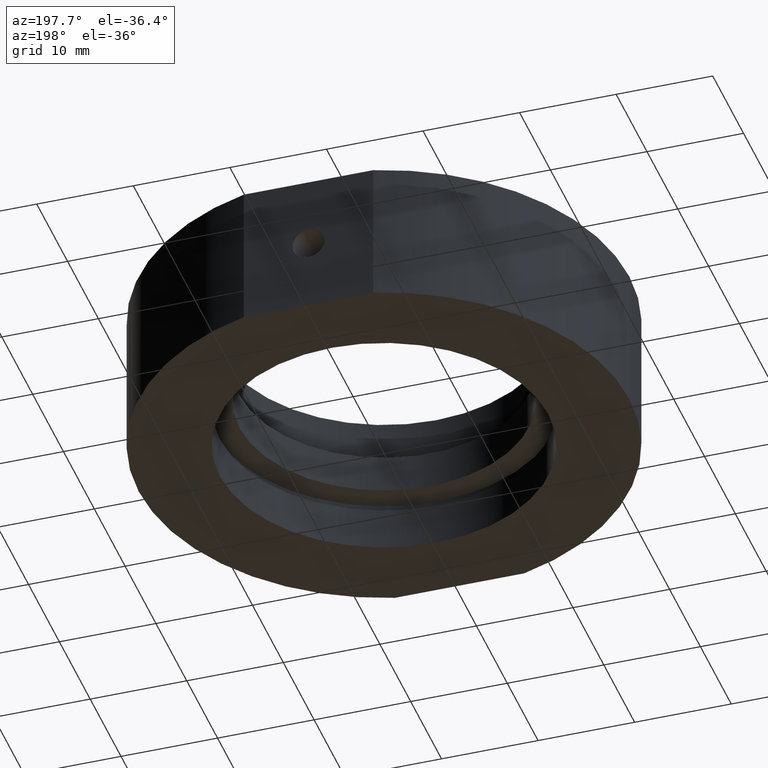
[diagram: clean part render]
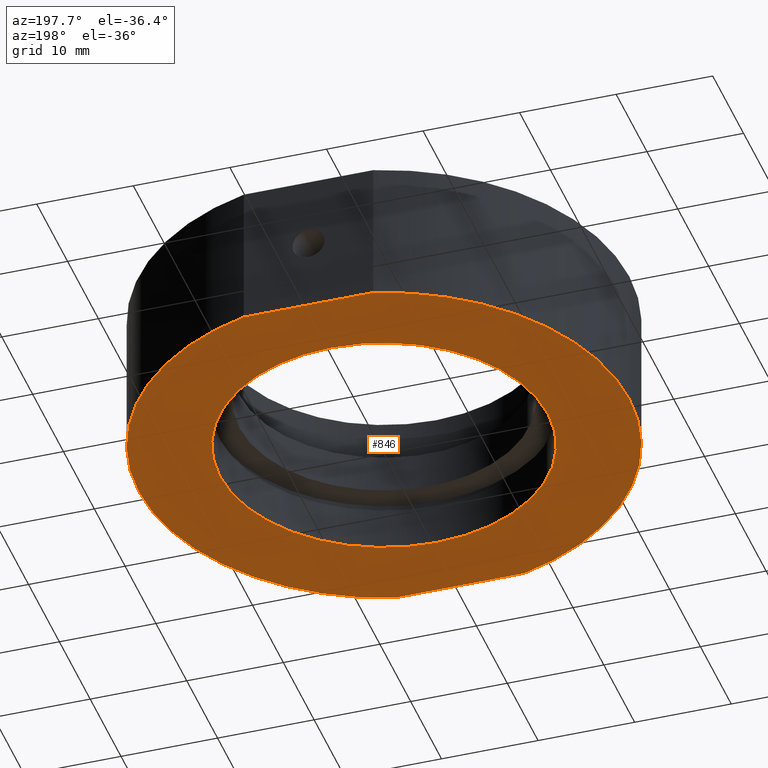
[diagram: same view with one face highlighted and labeled with its STEP entity id]
A machine part, auxiliary view. The second image highlights one B-rep face of the part: STEP entity #846.
In plain terms, the highlighted planar face has unit normal (0, 0, 1).
Its self-contained STEP definition (entity closure, byte-faithful):
#2 = EDGE_CURVE ( 'NONE', #18, #840, #479, .T. ) ;
#11 = CARTESIAN_POINT ( 'NONE',  ( 2.992922652324802700E-015, 0.0000000000000000000, -7.500000000000000000 ) ) ;
#13 = FACE_BOUND ( 'NONE', #258, .T. ) ;
#17 = VERTEX_POINT ( 'NONE', #379 ) ;
#18 = VERTEX_POINT ( 'NONE', #91 ) ;
#22 = DIRECTION ( 'NONE',  ( -1.000000000000000000, 0.0000000000000000000, 1.365923996832131600E-016 ) ) ;
#34 = CARTESIAN_POINT ( 'NONE',  ( 2.992922652324802700E-015, 0.0000000000000000000, -7.500000000000000000 ) ) ;
#40 = DIRECTION ( 'NONE',  ( 1.000000000000000000, 0.0000000000000000000, -1.224646799147350500E-016 ) ) ;
#84 = FACE_OUTER_BOUND ( 'NONE', #408, .T. ) ;
#85 = CIRCLE ( 'NONE', #520, 17.00000000000000000 ) ;
#91 = CARTESIAN_POINT ( 'NONE',  ( -6.701492371106592600, -24.50000000000000000, -7.499999999999999100 ) ) ;
#116 = CARTESIAN_POINT ( 'NONE',  ( 2.992922652324802700E-015, 0.0000000000000000000, -7.500000000000000000 ) ) ;
#161 = ORIENTED_EDGE ( 'NONE', *, *, #445, .F. ) ;
#167 = LINE ( 'NONE', #587, #571 ) ;
#177 = DIRECTION ( 'NONE',  ( 1.224646799147350500E-016, 0.0000000000000000000, 1.000000000000000000 ) ) ;
#183 = ORIENTED_EDGE ( 'NONE', *, *, #202, .T. ) ;
#185 = ORIENTED_EDGE ( 'NONE', *, *, #2, .T. ) ;
#189 = CARTESIAN_POINT ( 'NONE',  ( 17.00000000000000400, 0.0000000000000000000, -7.500000000000003600 ) ) ;
#193 = DIRECTION ( 'NONE',  ( -1.000000000000000000, 0.0000000000000000000, 1.020425574104004100E-016 ) ) ;
#202 = EDGE_CURVE ( 'NONE', #840, #551, #463, .T. ) ;
#239 = CIRCLE ( 'NONE', #786, 25.39999999999999900 ) ;
#258 = EDGE_LOOP ( 'NONE', ( #928, #161 ) ) ;
#324 = DIRECTION ( 'NONE',  ( -1.224646799147350500E-016, -0.0000000000000000000, -1.000000000000000000 ) ) ;
#334 = DIRECTION ( 'NONE',  ( -1.000000000000000000, 0.0000000000000000000, 1.365923996832131600E-016 ) ) ;
#337 = CARTESIAN_POINT ( 'NONE',  ( -25.39999999999999500, 0.0000000000000000000, -7.499999999999996400 ) ) ;
#342 = VERTEX_POINT ( 'NONE', #349 ) ;
#349 = CARTESIAN_POINT ( 'NONE',  ( 17.00000000000000400, 2.081899558550500300E-015, -7.500000000000001800 ) ) ;
#379 = CARTESIAN_POINT ( 'NONE',  ( -16.99999999999999600, 0.0000000000000000000, -7.499999999999998200 ) ) ;
#383 = DIRECTION ( 'NONE',  ( -1.000000000000000000, 0.0000000000000000000, 1.020425574104004100E-016 ) ) ;
#398 = DIRECTION ( 'NONE',  ( -1.224646799147350500E-016, -0.0000000000000000000, -1.000000000000000000 ) ) ;
#408 = EDGE_LOOP ( 'NONE', ( #808, #507, #185, #183, #792 ) ) ;
#411 = CARTESIAN_POINT ( 'NONE',  ( 6.701492371106597900, -24.50000000000000000, -7.500000000000000900 ) ) ;
#419 = DIRECTION ( 'NONE',  ( -1.224646799147350500E-016, -0.0000000000000000000, -1.000000000000000000 ) ) ;
#425 = CARTESIAN_POINT ( 'NONE',  ( 2.992922652324802700E-015, 0.0000000000000000000, -7.500000000000000000 ) ) ;
#445 = EDGE_CURVE ( 'NONE', #342, #17, #926, .T. ) ;
#459 = EDGE_CURVE ( 'NONE', #883, #18, #167, .T. ) ;
#463 = CIRCLE ( 'NONE', #936, 25.39999999999999900 ) ;
#467 = AXIS2_PLACEMENT_3D ( 'NONE', #189, #177, #40 ) ;
#478 = CARTESIAN_POINT ( 'NONE',  ( 6.701492371106597900, 24.50000000000000000, -7.500000000000000900 ) ) ;
#479 = CIRCLE ( 'NONE', #705, 25.39999999999999900 ) ;
#507 = ORIENTED_EDGE ( 'NONE', *, *, #459, .T. ) ;
#514 = EDGE_CURVE ( 'NONE', #551, #689, #616, .T. ) ;
#520 = AXIS2_PLACEMENT_3D ( 'NONE', #11, #600, #383 ) ;
#551 = VERTEX_POINT ( 'NONE', #895 ) ;
#571 = VECTOR ( 'NONE', #744, 1000.000000000000000 ) ;
#583 = EDGE_CURVE ( 'NONE', #17, #342, #85, .T. ) ;
#587 = CARTESIAN_POINT ( 'NONE',  ( 17.00000000000000400, -24.50000000000000000, -7.500000000000003600 ) ) ;
#591 = AXIS2_PLACEMENT_3D ( 'NONE', #116, #642, #193 ) ;
#600 = DIRECTION ( 'NONE',  ( -1.224646799147350500E-016, -0.0000000000000000000, -1.000000000000000000 ) ) ;
#616 = LINE ( 'NONE', #723, #726 ) ;
#642 = DIRECTION ( 'NONE',  ( -1.224646799147350500E-016, -0.0000000000000000000, -1.000000000000000000 ) ) ;
#660 = DIRECTION ( 'NONE',  ( -1.000000000000000000, 0.0000000000000000000, 1.365923996832131600E-016 ) ) ;
#689 = VERTEX_POINT ( 'NONE', #478 ) ;
#705 = AXIS2_PLACEMENT_3D ( 'NONE', #827, #398, #22 ) ;
#723 = CARTESIAN_POINT ( 'NONE',  ( 17.00000000000000400, 24.50000000000000000, -7.500000000000003600 ) ) ;
#726 = VECTOR ( 'NONE', #884, 1000.000000000000000 ) ;
#744 = DIRECTION ( 'NONE',  ( -1.000000000000000000, -0.0000000000000000000, 1.224646799147350500E-016 ) ) ;
#786 = AXIS2_PLACEMENT_3D ( 'NONE', #425, #419, #660 ) ;
#792 = ORIENTED_EDGE ( 'NONE', *, *, #514, .T. ) ;
#808 = ORIENTED_EDGE ( 'NONE', *, *, #954, .T. ) ;
#827 = CARTESIAN_POINT ( 'NONE',  ( 2.992922652324802700E-015, 0.0000000000000000000, -7.500000000000000000 ) ) ;
#840 = VERTEX_POINT ( 'NONE', #337 ) ;
#846 = ADVANCED_FACE ( 'NONE', ( #13, #84 ), #932, .F. ) ;
#883 = VERTEX_POINT ( 'NONE', #411 ) ;
#884 = DIRECTION ( 'NONE',  ( 1.000000000000000000, 0.0000000000000000000, -1.224646799147350500E-016 ) ) ;
#895 = CARTESIAN_POINT ( 'NONE',  ( -6.701492371106592600, 24.50000000000000000, -7.499999999999999100 ) ) ;
#926 = CIRCLE ( 'NONE', #591, 17.00000000000000000 ) ;
#928 = ORIENTED_EDGE ( 'NONE', *, *, #583, .F. ) ;
#932 = PLANE ( 'NONE',  #467 ) ;
#936 = AXIS2_PLACEMENT_3D ( 'NONE', #34, #324, #334 ) ;
#954 = EDGE_CURVE ( 'NONE', #689, #883, #239, .T. ) ;